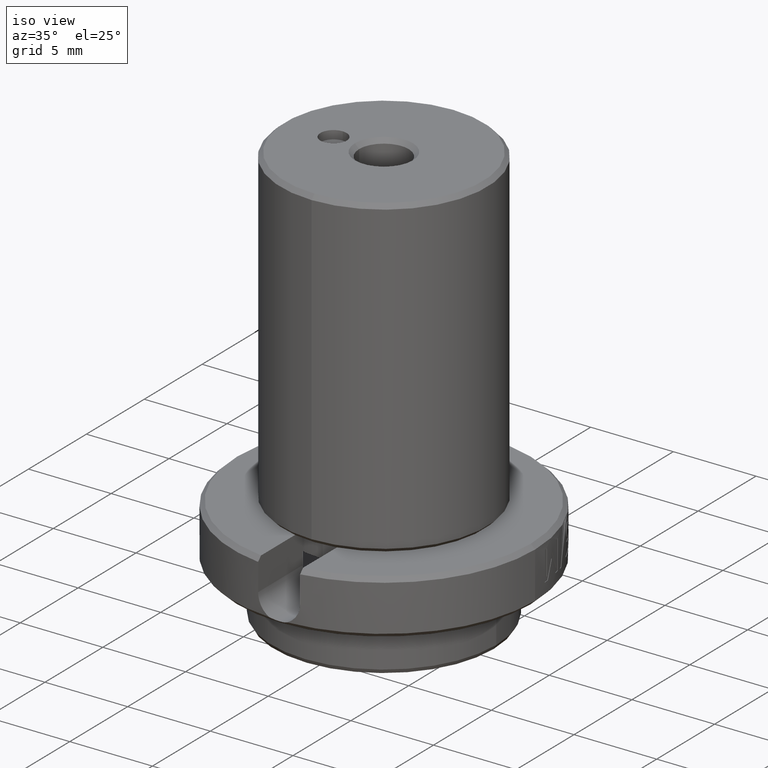
[diagram: clean part render]
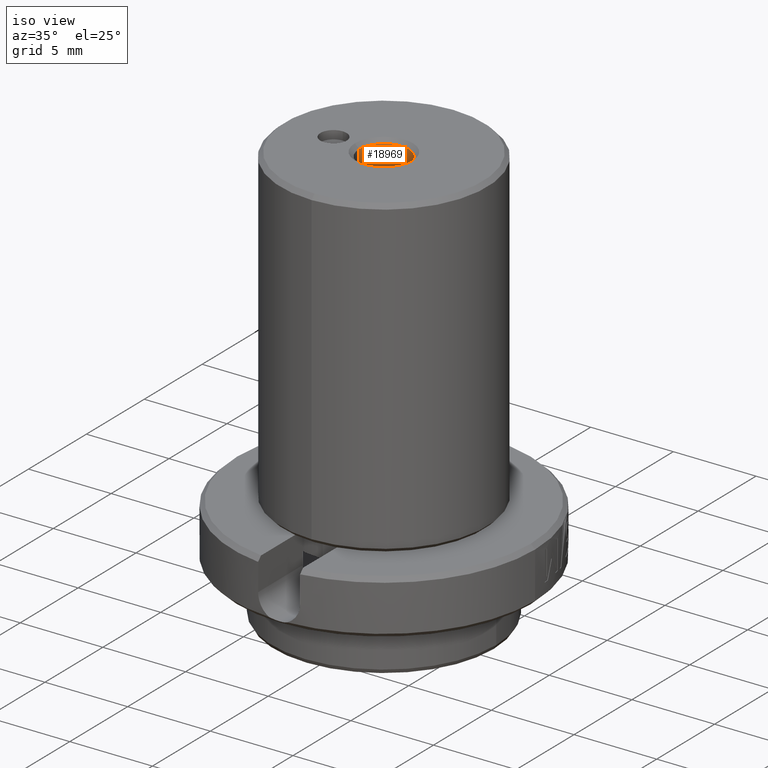
[diagram: same view with one face highlighted and labeled with its STEP entity id]
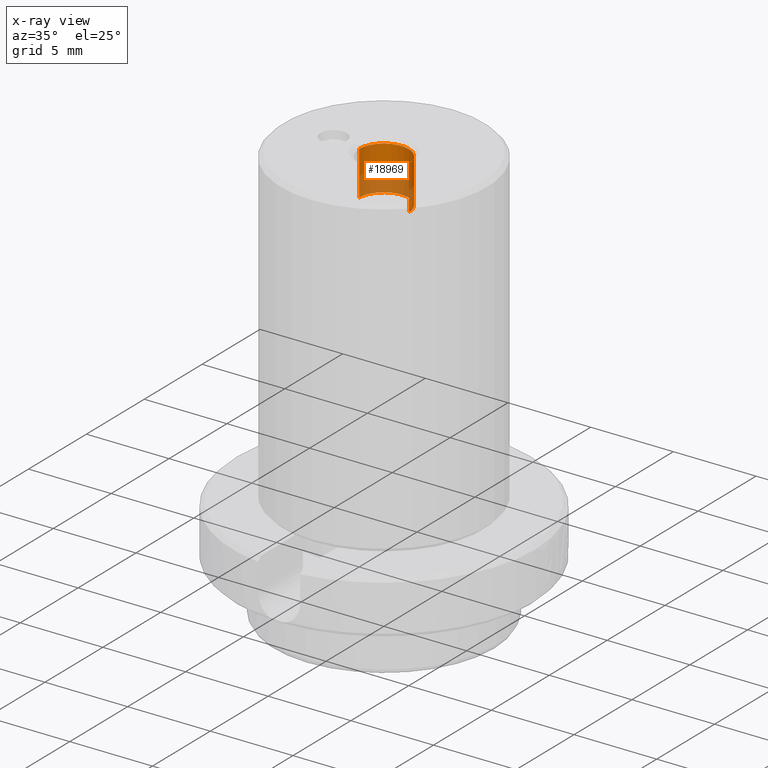
[diagram: x-ray of the same camera — body ghosted, the highlighted face saturated]
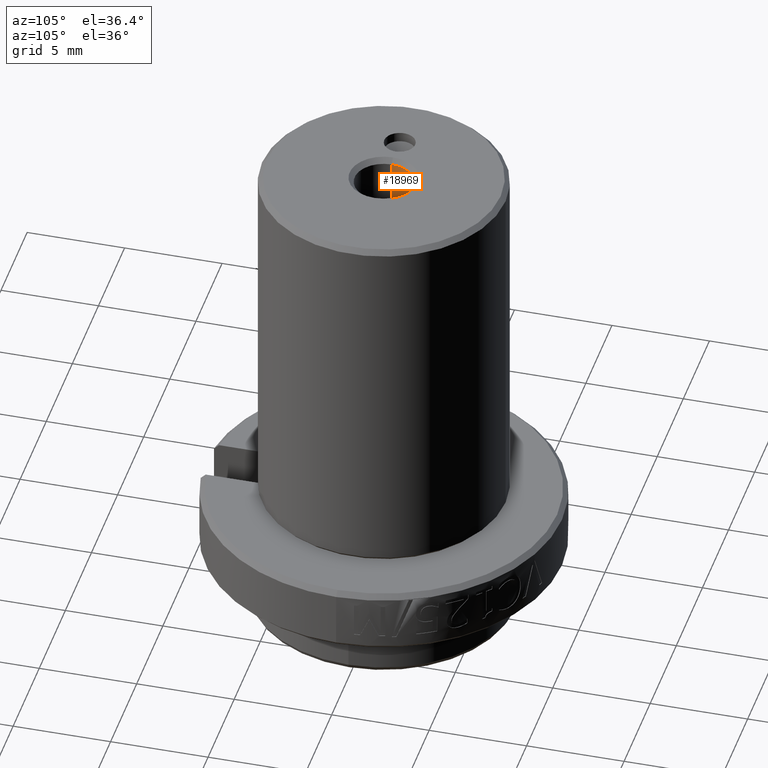
[diagram: same view with one face highlighted and labeled with its STEP entity id]
A machine part, iso view. The second image highlights one B-rep face of the part: STEP entity #18969.
The next image is the same camera in x-ray: the body ghosted, the highlighted face saturated — about 44% of this face is hidden behind the body in this view.
A second angle (auxiliary view) of the same face is appended — the face is thin or edge-on in the first view.
In plain terms, the highlighted cylindrical surface (edge-blend (fillet) strip) has radius 1.5 mm, axis along (0, -0, 1).
Its self-contained STEP definition (entity closure, byte-faithful):
#1998 = CARTESIAN_POINT ( 'NONE',  ( -0.05905511811023615720, -8.311971721196898306E-17, 0.2950000000000001510 ) ) ;
#2054 = CARTESIAN_POINT ( 'NONE',  ( -0.05905511811023615720, -9.328906797536952018E-17, 0.4100000000000001421 ) ) ;
#3022 = LINE ( 'NONE', #7952, #31133 ) ;
#3043 = VERTEX_POINT ( 'NONE', #28333 ) ;
#4247 = CARTESIAN_POINT ( 'NONE',  ( 0.05905511811023586577, -8.188154267541253295E-17, 0.2950000000000001510 ) ) ;
#6544 = EDGE_CURVE ( 'NONE', #35316, #20727, #36792, .T. ) ;
#7617 = DIRECTION ( 'NONE',  ( 5.017941502810100355E-18, -8.842913707304822330E-17, 1.000000000000000000 ) ) ;
#7952 = CARTESIAN_POINT ( 'NONE',  ( 0.05905511811023587965, -8.740836374247804922E-17, 0.4100000000000001421 ) ) ;
#8125 = AXIS2_PLACEMENT_3D ( 'NONE', #26696, #20446, #14771 ) ;
#8140 = EDGE_CURVE ( 'NONE', #9997, #3043, #3022, .T. ) ;
#8858 = AXIS2_PLACEMENT_3D ( 'NONE', #12409, #18110, #15420 ) ;
#8938 = ORIENTED_EDGE ( 'NONE', *, *, #6544, .F. ) ;
#9549 = EDGE_LOOP ( 'NONE', ( #29392, #9805, #35621, #8938 ) ) ;
#9805 = ORIENTED_EDGE ( 'NONE', *, *, #8140, .T. ) ;
#9997 = VERTEX_POINT ( 'NONE', #4247 ) ;
#10079 = AXIS2_PLACEMENT_3D ( 'NONE', #24957, #7617, #30793 ) ;
#12409 = CARTESIAN_POINT ( 'NONE',  ( -1.340834289318081077E-16, -8.673263279057531261E-17, 0.4100000000000001421 ) ) ;
#12693 = CIRCLE ( 'NONE', #10079, 0.05905511811023601842 ) ;
#13219 = CYLINDRICAL_SURFACE ( 'NONE', #8858, 0.05905511811023601842 ) ;
#13478 = DIRECTION ( 'NONE',  ( 5.017941502810100355E-18, -8.842913707304822330E-17, 1.000000000000000000 ) ) ;
#14771 = DIRECTION ( 'NONE',  ( -1.000000000000000000, -1.110223024625156294E-16, 0.000000000000000000 ) ) ;
#15081 = VECTOR ( 'NONE', #13478, 39.37007874015748143 ) ;
#15420 = DIRECTION ( 'NONE',  ( -1.000000000000000000, -1.110223024625156294E-16, 0.000000000000000000 ) ) ;
#15576 = EDGE_CURVE ( 'NONE', #3043, #20727, #12693, .T. ) ;
#18110 = DIRECTION ( 'NONE',  ( 5.017941502810100355E-18, -8.842913707304822330E-17, 1.000000000000000000 ) ) ;
#18163 = CARTESIAN_POINT ( 'NONE',  ( -0.05905511811023613639, -8.776224690830401624E-17, 0.4000000000000001887 ) ) ;
#18969 = ADVANCED_FACE ( 'NONE', ( #30850 ), #13219, .F. ) ;
#20446 = DIRECTION ( 'NONE',  ( -5.017941502810100355E-18, 8.842913707304822330E-17, -1.000000000000000000 ) ) ;
#20727 = VERTEX_POINT ( 'NONE', #18163 ) ;
#21877 = CIRCLE ( 'NONE', #8125, 0.05905511811023601842 ) ;
#24957 = CARTESIAN_POINT ( 'NONE',  ( -1.341336083468362048E-16, -8.584834141984484184E-17, 0.4000000000000001887 ) ) ;
#26696 = CARTESIAN_POINT ( 'NONE',  ( -1.346604922046312615E-16, -7.656328202717477550E-17, 0.2950000000000001510 ) ) ;
#28333 = CARTESIAN_POINT ( 'NONE',  ( 0.05905511811023586577, -8.188154267541253295E-17, 0.4000000000000001887 ) ) ;
#28338 = DIRECTION ( 'NONE',  ( 5.017941502810100355E-18, -8.842913707304822330E-17, 1.000000000000000000 ) ) ;
#29392 = ORIENTED_EDGE ( 'NONE', *, *, #29943, .T. ) ;
#29943 = EDGE_CURVE ( 'NONE', #35316, #9997, #21877, .T. ) ;
#30793 = DIRECTION ( 'NONE',  ( 1.000000000000000000, 1.110223024625156294E-16, 0.000000000000000000 ) ) ;
#30850 = FACE_OUTER_BOUND ( 'NONE', #9549, .T. ) ;
#31133 = VECTOR ( 'NONE', #28338, 39.37007874015748143 ) ;
#35316 = VERTEX_POINT ( 'NONE', #1998 ) ;
#35621 = ORIENTED_EDGE ( 'NONE', *, *, #15576, .T. ) ;
#36792 = LINE ( 'NONE', #2054, #15081 ) ;